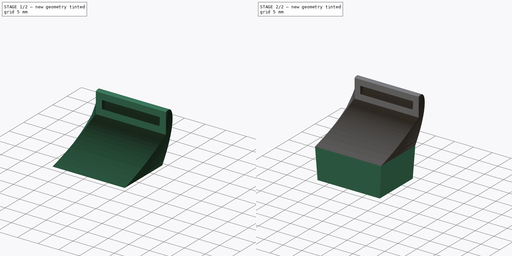
[diagram: build sequence overview — one tinted view per stage of 2, left to right]
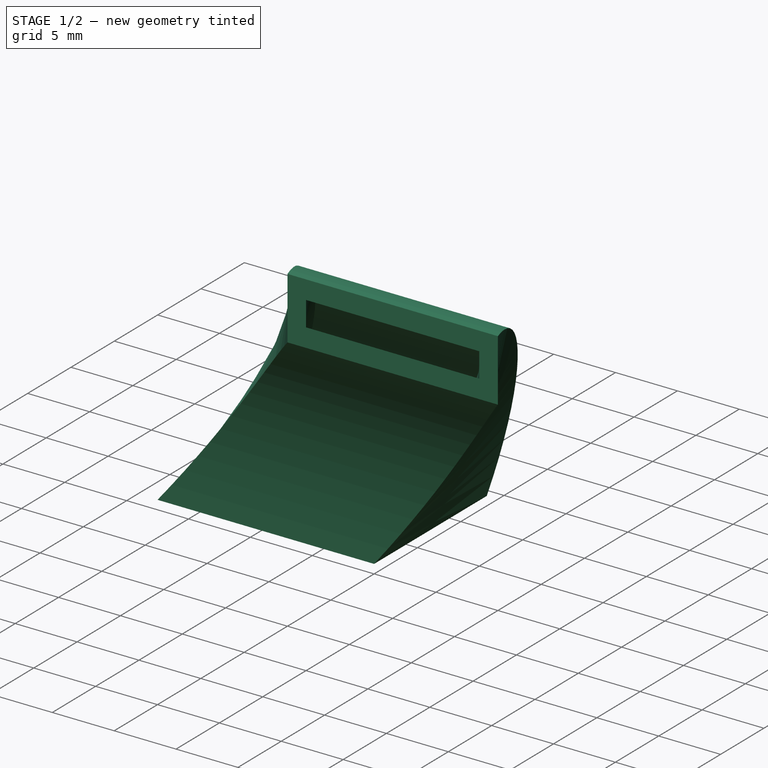
[diagram: stage 1 of 2 — iso view after this stage's code; geometry added in this stage tinted green]
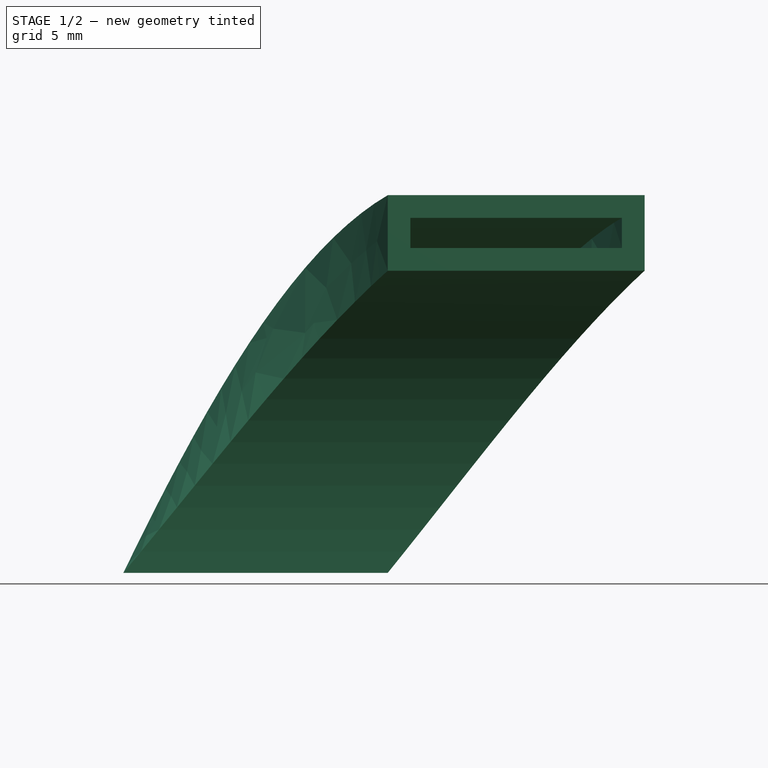
[diagram: stage 1 of 2 — front view after this stage's code; geometry added in this stage tinted green]
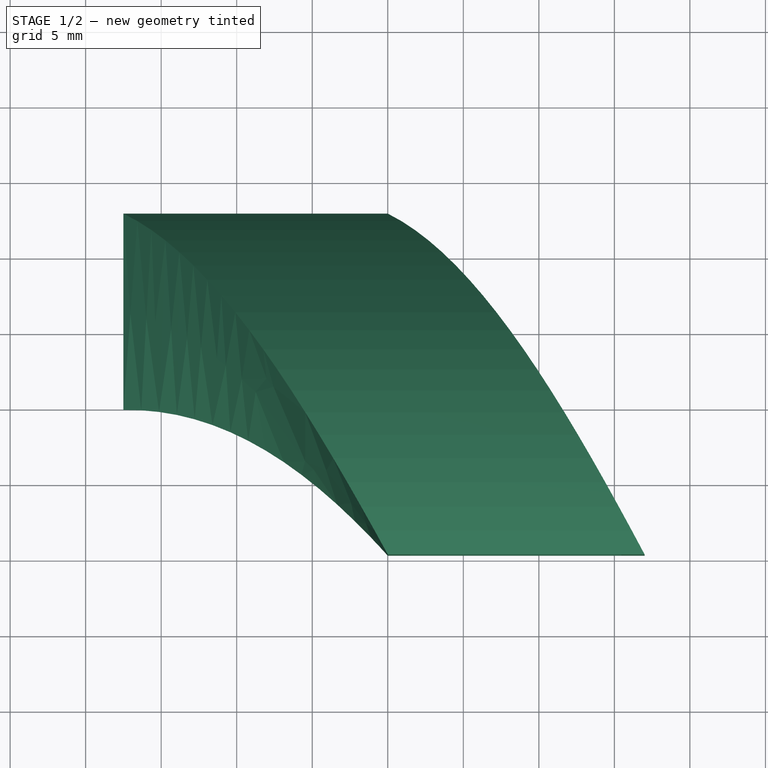
[diagram: stage 1 of 2 — top view after this stage's code; geometry added in this stage tinted green]
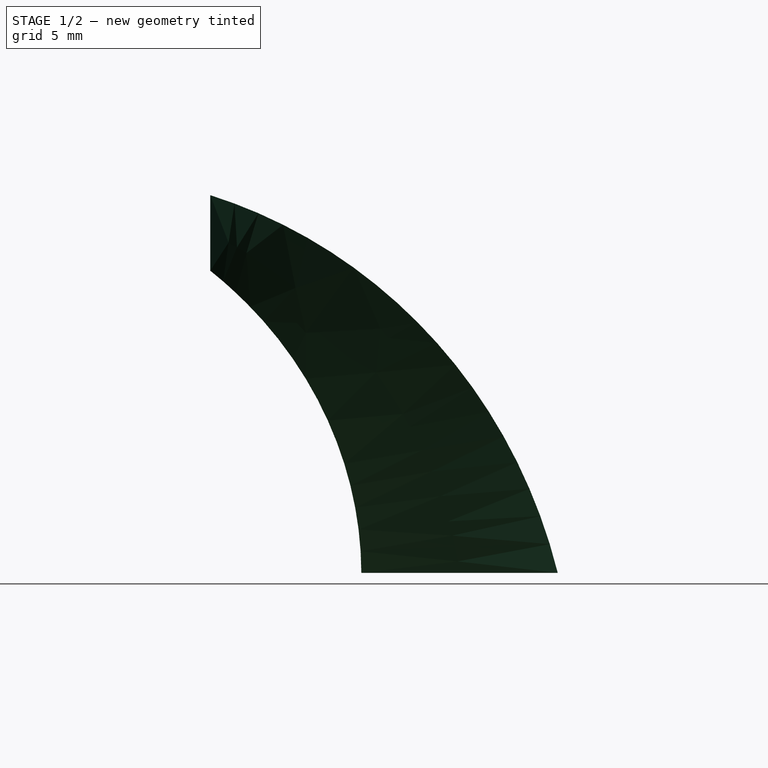
[diagram: stage 1 of 2 — right view after this stage's code; geometry added in this stage tinted green]
FCSTD DOCUMENT  (FreeCAD 0.19R24276 (Git))
Label: 3DX1_nozzle_duct_v2
License: All rights reserved
LicenseURL: http://en.wikipedia.org/wiki/All_rights_reserved
objects: Sketcher::SketchObject×4, PartDesign::AdditivePipe×1, PartDesign::AdditiveLoft×1, PartDesign::Body×1
note: 9 computed .brp shape members not serialized (recipe doc carries the construction recipe); baked Part::Feature solids carry a one-line shape summary decoded from their .brp

FEATURE [Sketcher::SketchObject] Sketch
  FullyConstrained = true
  MapMode = 5
  Support = -> [XY_Plane]
  sketch-geometry (12):
    g0: LineSegment StartX=-17.5 StartY=23 StartZ=0 EndX=0 EndY=23 EndZ=0
    g1: LineSegment StartX=0 StartY=23 StartZ=0 EndX=0 EndY=10 EndZ=0
    g2: LineSegment StartX=0 StartY=10 StartZ=0 EndX=-17.5 EndY=10 EndZ=0
    g3: LineSegment StartX=-17.5 StartY=10 StartZ=0 EndX=-17.5 EndY=23 EndZ=0
    g4: LineSegment StartX=-16 StartY=21.5 StartZ=0 EndX=-1.5 EndY=21.5 EndZ=0
    g5: LineSegment StartX=-1.5 StartY=21.5 StartZ=0 EndX=-1.5 EndY=11.5 EndZ=0
    g6: LineSegment StartX=-1.5 StartY=11.5 StartZ=0 EndX=-16 EndY=11.5 EndZ=0
    g7: LineSegment StartX=-16 StartY=11.5 StartZ=0 EndX=-16 EndY=21.5 EndZ=0
    g8: LineSegment StartX=-17.5 StartY=23 StartZ=0 EndX=-16 EndY=23 EndZ=0
    g9: LineSegment StartX=-16 StartY=23 StartZ=0 EndX=-16 EndY=21.5 EndZ=0
    g10: LineSegment StartX=-16 StartY=21.5 StartZ=0 EndX=-17.5 EndY=21.5 EndZ=0
    g11: LineSegment StartX=-17.5 StartY=21.5 StartZ=0 EndX=-17.5 EndY=23 EndZ=0
  constraints (34):
    c: Coincident(g0,g1)
    c: Coincident(g1,g2)
    c: Coincident(g2,g3)
    c: Coincident(g3,g0)
    c: Horizontal(g0)
    c: Horizontal(g2)
    c: Vertical(g1)
    c: Vertical(g3)
    c: PointOnObject(g1,g-2)
    c: Coincident(g4,g5)
    c: Coincident(g5,g6)
    c: Coincident(g6,g7)
    c: Coincident(g7,g4)
    c: Horizontal(g4)
    c: Horizontal(g6)
    c: Vertical(g5)
    c: Vertical(g7)
    c: Coincident(g8,g9)
    c: Coincident(g9,g10)
    c: Coincident(g10,g11)
    c: Coincident(g11,g8)
    c: Horizontal(g8)
    c: Horizontal(g10)
    c: Vertical(g9)
    c: Vertical(g11)
    c: Coincident(g8,g0)
    c: Coincident(g9,g4)
    c: Equal(g9,g10)
    c: DistanceX(g10,g10) = 1.5
    c: DistanceY(g3,g3) = 13
    c: DistanceX(g0,g0) = 17.5
    c: DistanceY(g5,g5) = 10
    c: DistanceX(g4,g4) = 14.5
    c: DistanceY(g-1,g1) = 10
FEATURE [Sketcher::SketchObject] Sketch001
  FullyConstrained = true
  MapMode = 5
  Placement = pos=(0,0,0) rot=(1,0,0;1.5708rad)
  Support = -> [XZ_Plane]
  sketch-geometry (12):
    g0: LineSegment StartX=0 StartY=20 StartZ=0 EndX=17 EndY=20 EndZ=0
    g1: LineSegment StartX=17 StartY=20 StartZ=0 EndX=17 EndY=25 EndZ=0
    g2: LineSegment StartX=17 StartY=25 StartZ=0 EndX=0 EndY=25 EndZ=0
    g3: LineSegment StartX=0 StartY=25 StartZ=0 EndX=0 EndY=20 EndZ=0
    g4: LineSegment StartX=1.5 StartY=23.5 StartZ=0 EndX=15.5 EndY=23.5 EndZ=0
    g5: LineSegment StartX=15.5 StartY=23.5 StartZ=0 EndX=15.5 EndY=21.5 EndZ=0
    g6: LineSegment StartX=15.5 StartY=21.5 StartZ=0 EndX=1.5 EndY=21.5 EndZ=0
    g7: LineSegment StartX=1.5 StartY=21.5 StartZ=0 EndX=1.5 EndY=23.5 EndZ=0
    g8: LineSegment StartX=0 StartY=25 StartZ=0 EndX=1.5 EndY=25 EndZ=0
    g9: LineSegment StartX=1.5 StartY=25 StartZ=0 EndX=1.5 EndY=23.5 EndZ=0
    g10: LineSegment StartX=1.5 StartY=23.5 StartZ=0 EndX=0 EndY=23.5 EndZ=0
    g11: LineSegment StartX=0 StartY=23.5 StartZ=0 EndX=0 EndY=25 EndZ=0
  constraints (34):
    c: Coincident(g0,g1)
    c: Coincident(g1,g2)
    c: Coincident(g2,g3)
    c: Coincident(g3,g0)
    c: Horizontal(g0)
    c: Horizontal(g2)
    c: Vertical(g1)
    c: Vertical(g3)
    c: PointOnObject(g0,g-2)
    c: DistanceY(g3,g3) = 5
    c: DistanceX(g2,g2) = 17
    c: Coincident(g4,g5)
    c: Coincident(g5,g6)
    c: Coincident(g6,g7)
    c: Coincident(g7,g4)
    c: Horizontal(g4)
    c: Horizontal(g6)
    c: Vertical(g5)
    c: Vertical(g7)
    c: DistanceY(g5,g5) = 2
    c: DistanceX(g4,g4) = 14
    c: Coincident(g8,g9)
    c: Coincident(g9,g10)
    c: Coincident(g10,g11)
    c: Coincident(g11,g8)
    c: Horizontal(g8)
    c: Horizontal(g10)
    c: Vertical(g9)
    c: Vertical(g11)
    c: Coincident(g8,g2)
    c: Coincident(g9,g4)
    c: Equal(g10,g9)
    c: DistanceX(g10,g10) = 1.5
    c: DistanceY(g-1,g2) = 25
FEATURE [Sketcher::SketchObject] Sketch002
  FullyConstrained = true
  MapMode = 5
  Placement = pos=(0,0,0) rot=(0.57735,0.57735,0.57735;2.0944rad)
  Support = -> [YZ_Plane]
  sketch-geometry (1):
    g0: ArcOfCircle CenterX=-13.6252 CenterY=-4.72741 CenterZ=0 NormalX=0 NormalY=0 NormalZ=1 AngleXU=0 Radius=30 StartAngle=0.15824 EndAngle=1.09935
  constraints (5):
    c: PointOnObject(g0,g-2)
    c: PointOnObject(g0,g-1)
    c: DistanceY(g-1,g0) = 22
    c: DistanceX(g-1,g0) = 16
    c: Diameter(g0) = 60
FEATURE [PartDesign::AdditivePipe] AdditivePipe
  AuxilleryCurvelinear = true
  AuxillerySpineTangent = false
  Binormal = (0,0,0)
  Mode = 0
  Profile = -> Sketch
  Sections = -> [Sketch001]
  Spine = -> Sketch002 [Edge1]
  SpineTangent = false
  Transformation = 1
  Transition = 0
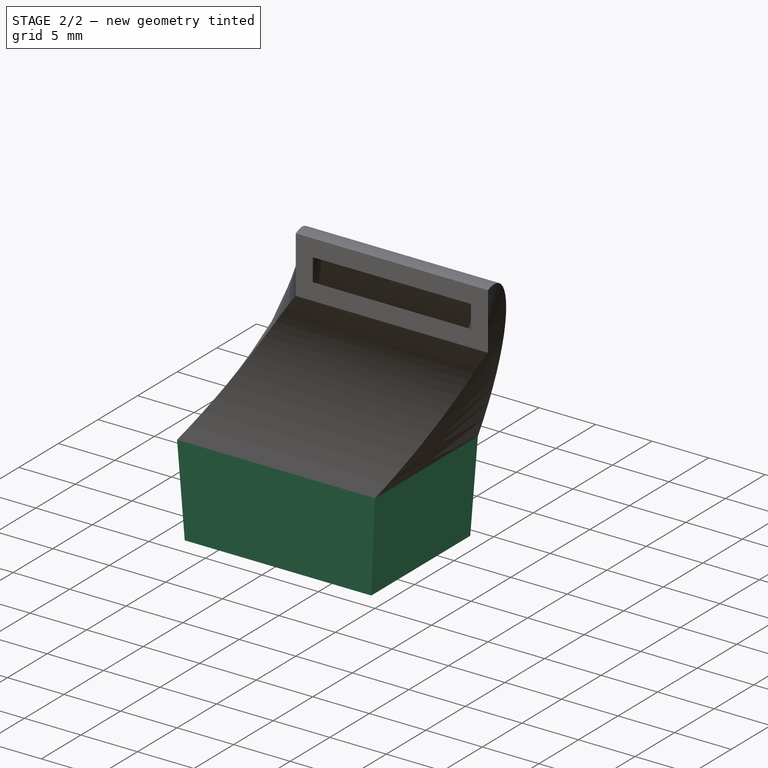
[diagram: stage 2 of 2 — iso view after this stage's code; geometry added in this stage tinted green]
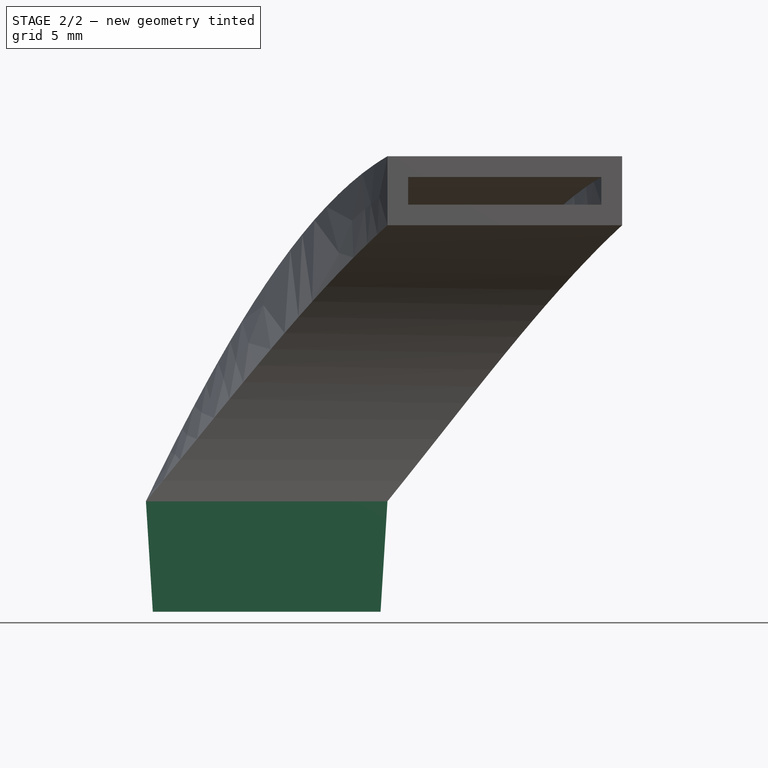
[diagram: stage 2 of 2 — front view after this stage's code; geometry added in this stage tinted green]
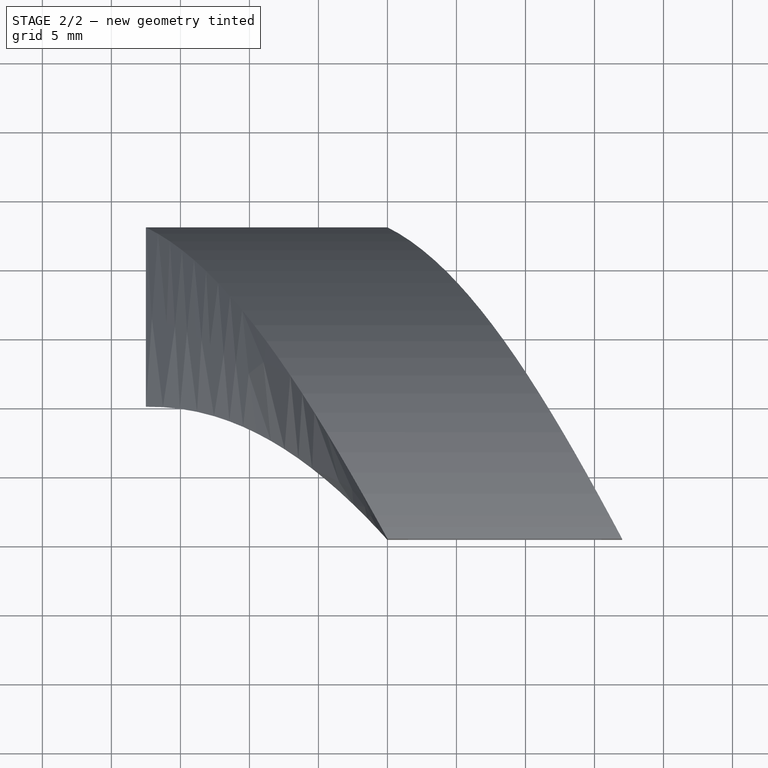
[diagram: stage 2 of 2 — top view after this stage's code; geometry added in this stage tinted green]
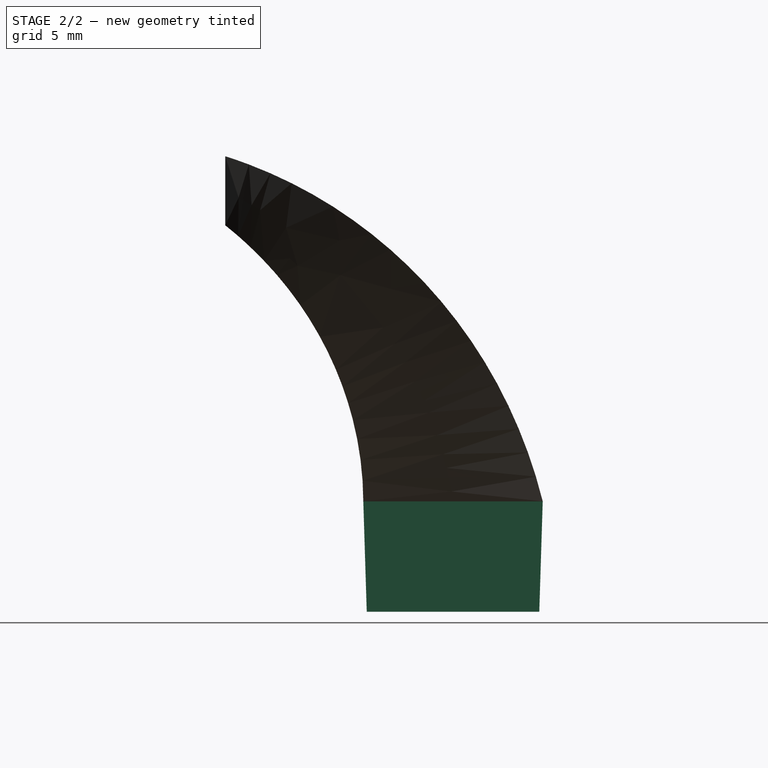
[diagram: stage 2 of 2 — right view after this stage's code; geometry added in this stage tinted green]
FEATURE [Sketcher::SketchObject] Sketch003
  AttachmentOffset = pos=(0,0,8) rot=(0,0,1;0rad)
  ExternalGeometry = -> [AdditivePipe]
  FullyConstrained = true
  MapMode = 5
  Placement = pos=(1e-16,0,-8) rot=(1,0,0;3.14159rad)
  Support = -> [AdditivePipe]
  sketch-geometry (12):
    g0: LineSegment StartX=-17 StartY=-10.25 StartZ=0 EndX=-0.5 EndY=-10.25 EndZ=0
    g1: LineSegment StartX=-0.5 StartY=-10.25 StartZ=0 EndX=-0.5 EndY=-22.75 EndZ=0
    g2: LineSegment StartX=-0.5 StartY=-22.75 StartZ=0 EndX=-17 EndY=-22.75 EndZ=0
    g3: LineSegment StartX=-17 StartY=-22.75 StartZ=0 EndX=-17 EndY=-10.25 EndZ=0
    g4: LineSegment StartX=-16 StartY=-11.5 StartZ=0 EndX=-1.5 EndY=-11.5 EndZ=0
    g5: LineSegment StartX=-1.5 StartY=-11.5 StartZ=0 EndX=-1.5 EndY=-21.5 EndZ=0
    g6: LineSegment StartX=-1.5 StartY=-21.5 StartZ=0 EndX=-16 EndY=-21.5 EndZ=0
    g7: LineSegment StartX=-16 StartY=-21.5 StartZ=0 EndX=-16 EndY=-11.5 EndZ=0
    g8: LineSegment StartX=-17.5 StartY=-10 StartZ=0 EndX=-16 EndY=-10 EndZ=0
    g9: LineSegment StartX=-16 StartY=-10 StartZ=0 EndX=-16 EndY=-11.5 EndZ=0
    g10: LineSegment StartX=-16 StartY=-11.5 StartZ=0 EndX=-17.5 EndY=-11.5 EndZ=0
    g11: LineSegment StartX=-17.5 StartY=-11.5 StartZ=0 EndX=-17.5 EndY=-10 EndZ=0
  constraints (34):
    c: Coincident(g0,g1)
    c: Coincident(g1,g2)
    c: Coincident(g2,g3)
    c: Coincident(g3,g0)
    c: Horizontal(g0)
    c: Horizontal(g2)
    c: Vertical(g1)
    c: Vertical(g3)
    c: DistanceX(g0,g0) = 16.5
    c: DistanceY(g1,g1) = 12.5
    c: DistanceX(g0,g-1) = 0.5
    c: DistanceY(g0,g-1) = 10.25
    c: Coincident(g4,g5)
    c: Coincident(g5,g6)
    c: Coincident(g6,g7)
    c: Coincident(g7,g4)
    c: Horizontal(g4)
    c: Horizontal(g6)
    c: Vertical(g5)
    c: Vertical(g7)
    c: Coincident(g8,g9)
    c: Coincident(g9,g10)
    c: Coincident(g10,g11)
    c: Coincident(g11,g8)
    c: Horizontal(g8)
    c: Horizontal(g10)
    c: Vertical(g9)
    c: Vertical(g11)
    c: Coincident(g8,g-3)
    c: Coincident(g9,g4)
    c: Equal(g10,g9)
    c: DistanceX(g10,g10) = 1.5
    c: DistanceX(g4,g4) = 14.5
    c: DistanceY(g5,g5) = 10
FEATURE [PartDesign::AdditiveLoft] AdditiveLoft
  BaseFeature = -> AdditivePipe
  Closed = false
  Profile = -> AdditivePipe [Face1]
  Ruled = false
  Sections = -> [Sketch003]
FEATURE [PartDesign::Body] Body
  Group = -> [Sketch,Sketch001,Sketch002,AdditivePipe,Sketch003,AdditiveLoft]
  Origin = -> Origin
  Tip = -> AdditiveLoft
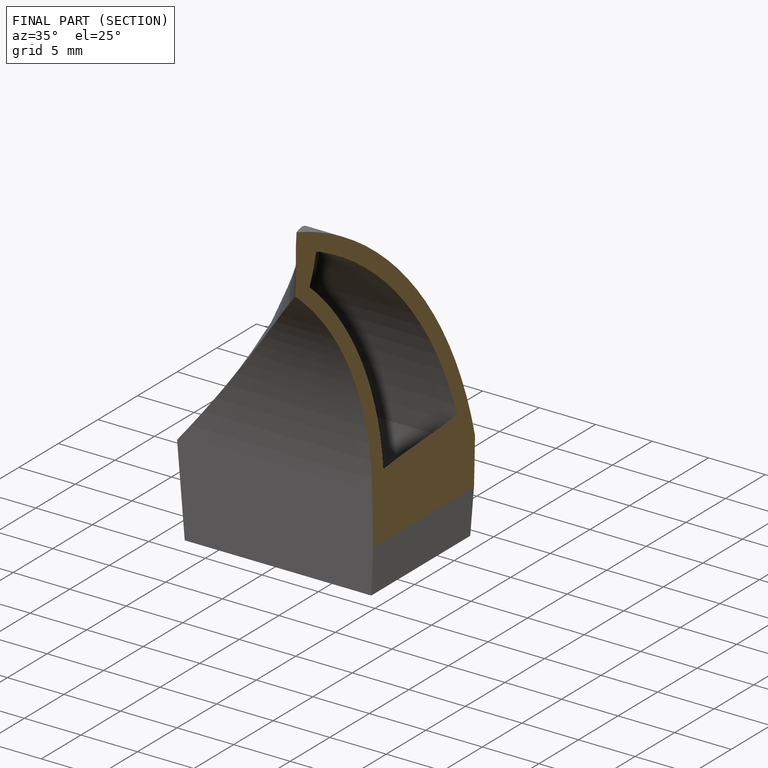
[diagram: finished part — half-section view (interior)]
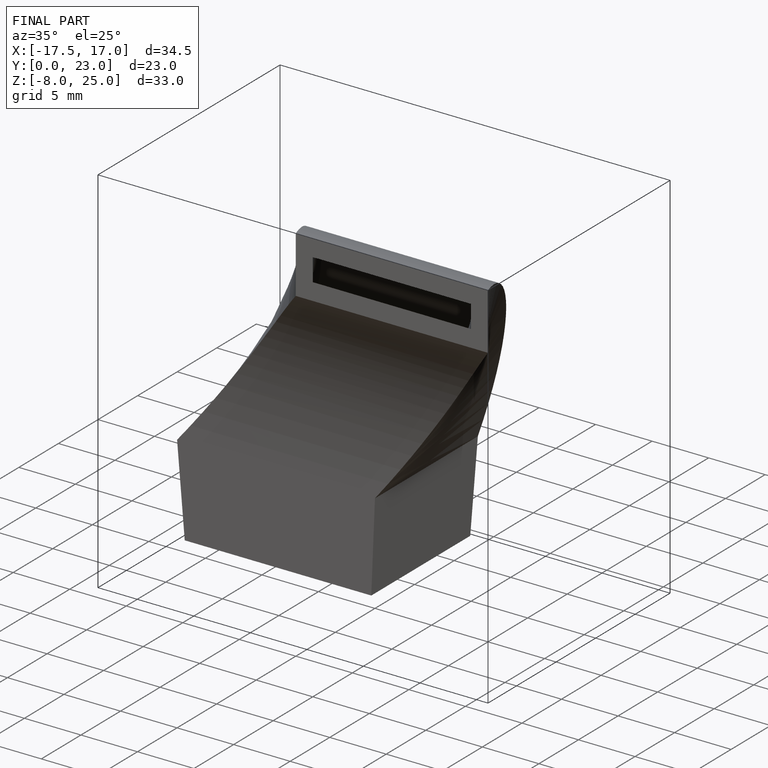
[diagram: finished part — iso view with bounding-box wireframe]
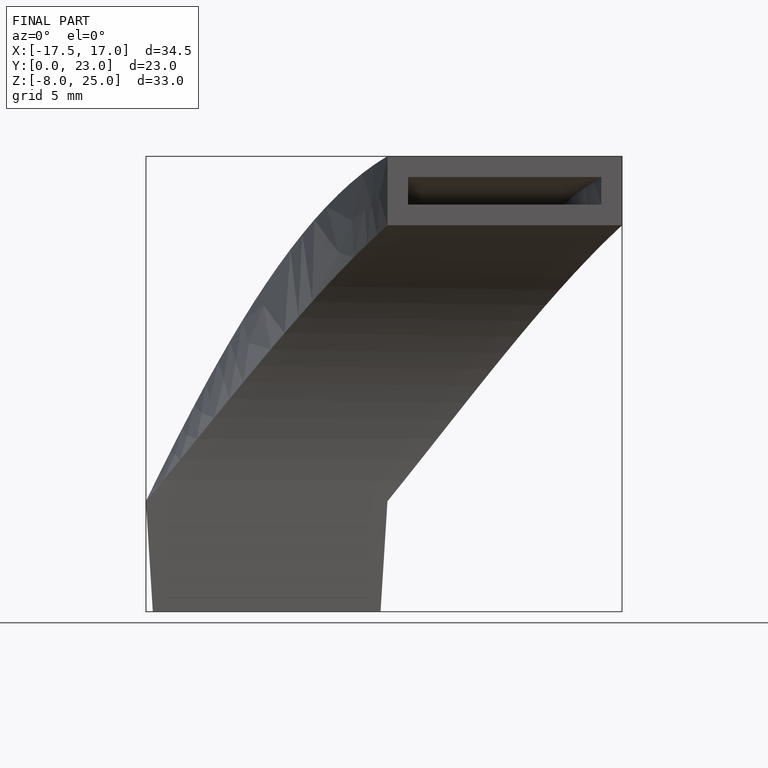
[diagram: finished part — front view with bounding-box wireframe]
